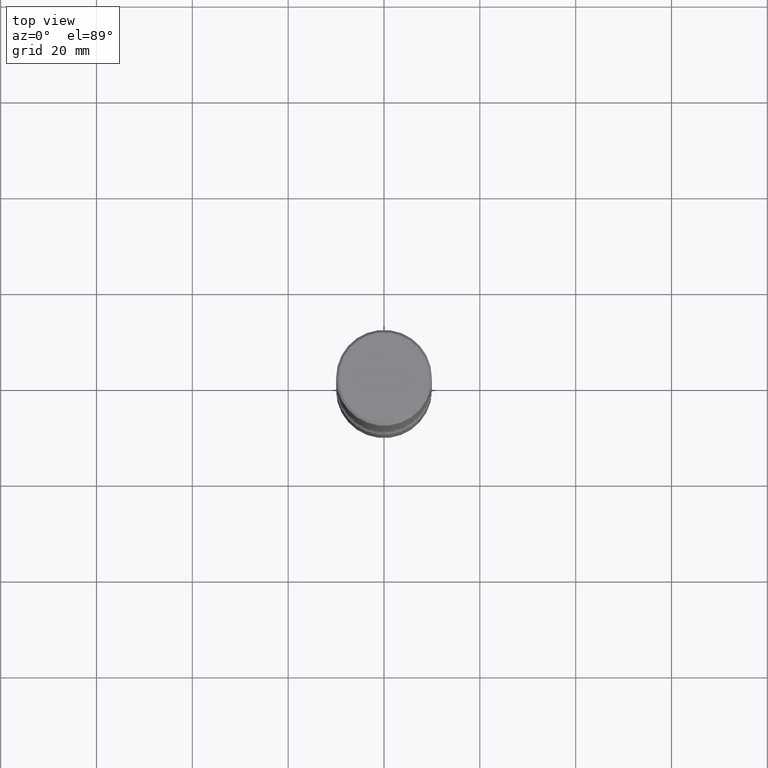
[diagram: clean part render]
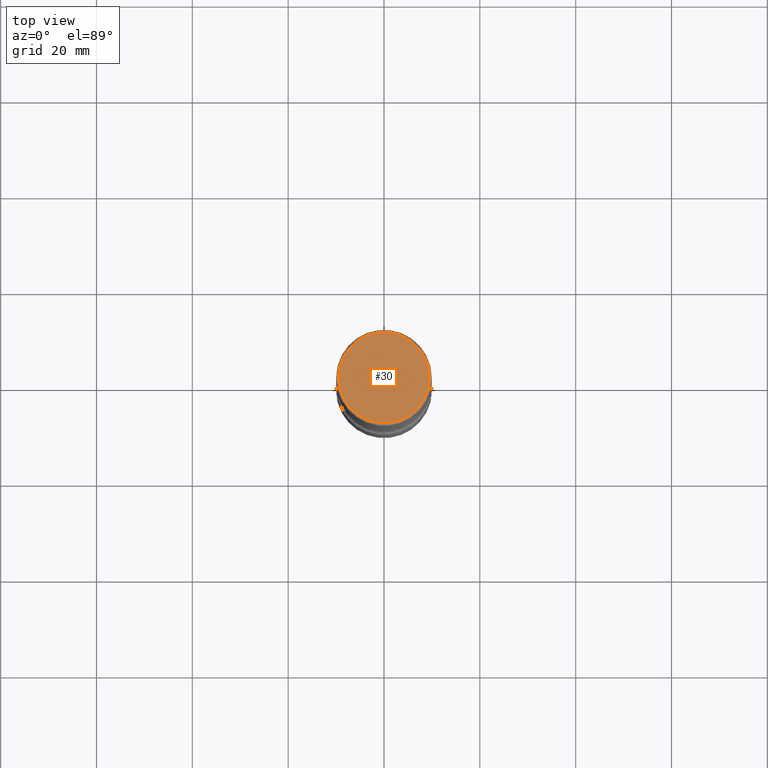
[diagram: same view with one face highlighted and labeled with its STEP entity id]
A machine part, top view. The second image highlights one B-rep face of the part: STEP entity #30.
In plain terms, the highlighted planar face has unit normal (0, -0, -1).
Its self-contained STEP definition (entity closure, byte-faithful):
#2 = DIRECTION ( 'NONE',  ( -2.445468806185136597E-29, 3.491481338843145583E-15, 1.000000000000000000 ) ) ;
#30 = ADVANCED_FACE ( 'NONE', ( #178 ), #394, .F. ) ;
#69 = DIRECTION ( 'NONE',  ( 1.000000000000000000, -6.982962677686266711E-15, 4.876212485538976239E-29 ) ) ;
#81 = AXIS2_PLACEMENT_3D ( 'NONE', #501, #455, #69 ) ;
#108 = CARTESIAN_POINT ( 'NONE',  ( -0.3736999999999999211, 2.644447966039788269E-15, 8.537024980182450727E-18 ) ) ;
#134 = EDGE_CURVE ( 'NONE', #379, #151, #180, .T. ) ;
#137 = DIRECTION ( 'NONE',  ( -1.000000000000000000, 6.982962677686265922E-15, -4.876176775795935793E-29 ) ) ;
#151 = VERTEX_POINT ( 'NONE', #108 ) ;
#178 = FACE_OUTER_BOUND ( 'NONE', #370, .T. ) ;
#180 = CIRCLE ( 'NONE', #81, 0.3736999999999999211 ) ;
#218 = CIRCLE ( 'NONE', #506, 0.3736999999999999211 ) ;
#227 = AXIS2_PLACEMENT_3D ( 'NONE', #272, #440, #137 ) ;
#249 = CARTESIAN_POINT ( 'NONE',  ( 0.3736999999999999211, -2.667287895133367964E-15, 8.537024980219274507E-18 ) ) ;
#272 = CARTESIAN_POINT ( 'NONE',  ( 2.609533152651356620E-15, 0.3736999999999999211, -1.300498063835582814E-15 ) ) ;
#334 = CARTESIAN_POINT ( 'NONE',  ( -2.087702828670439639E-46, 2.980686340760894400E-32, 8.537024980200822558E-18 ) ) ;
#370 = EDGE_LOOP ( 'NONE', ( #464, #527 ) ) ;
#379 = VERTEX_POINT ( 'NONE', #249 ) ;
#394 = PLANE ( 'NONE',  #227 ) ;
#440 = DIRECTION ( 'NONE',  ( 2.438088387897960049E-29, -3.491481338843145188E-15, -1.000000000000000000 ) ) ;
#455 = DIRECTION ( 'NONE',  ( -2.445468806185136597E-29, 3.491481338843145583E-15, 1.000000000000000000 ) ) ;
#464 = ORIENTED_EDGE ( 'NONE', *, *, #474, .T. ) ;
#474 = EDGE_CURVE ( 'NONE', #151, #379, #218, .T. ) ;
#501 = CARTESIAN_POINT ( 'NONE',  ( -2.087702828670439639E-46, 2.980686340760894400E-32, 8.537024980200822558E-18 ) ) ;
#502 = DIRECTION ( 'NONE',  ( 1.000000000000000000, -6.982962677686266711E-15, 4.876212485538976239E-29 ) ) ;
#506 = AXIS2_PLACEMENT_3D ( 'NONE', #334, #2, #502 ) ;
#527 = ORIENTED_EDGE ( 'NONE', *, *, #134, .T. ) ;